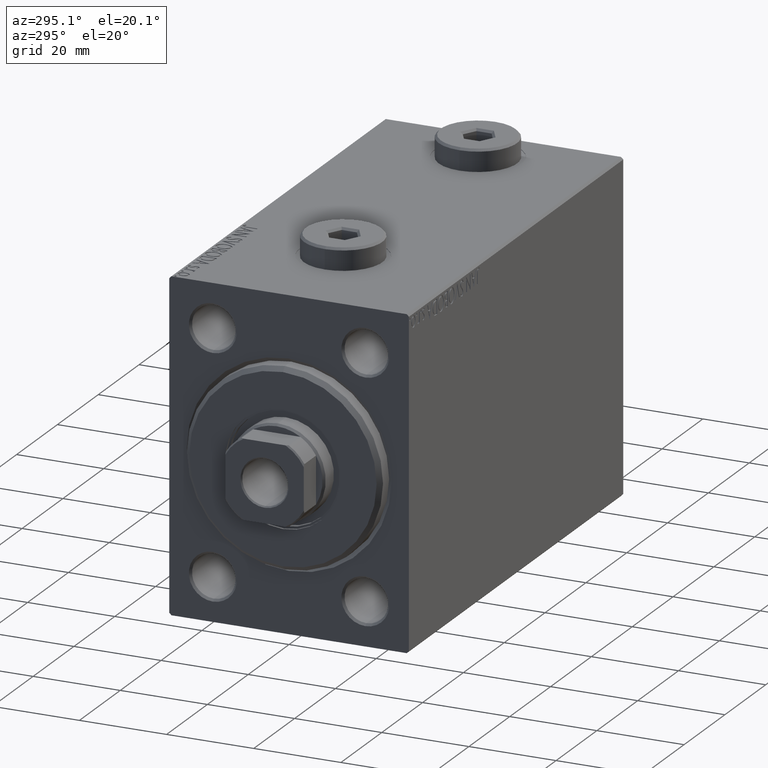
[diagram: clean part render]
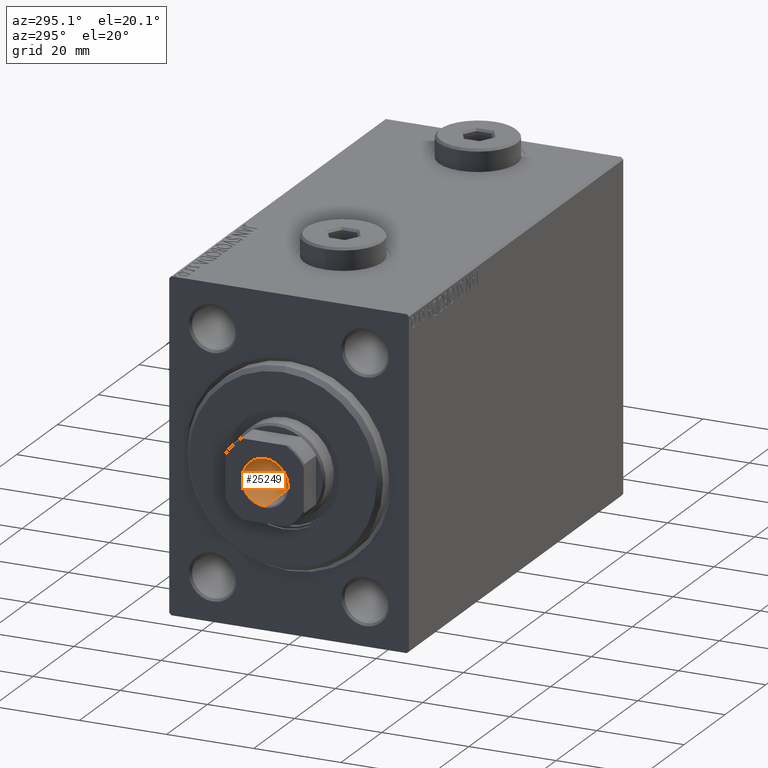
[diagram: same view with one face highlighted and labeled with its STEP entity id]
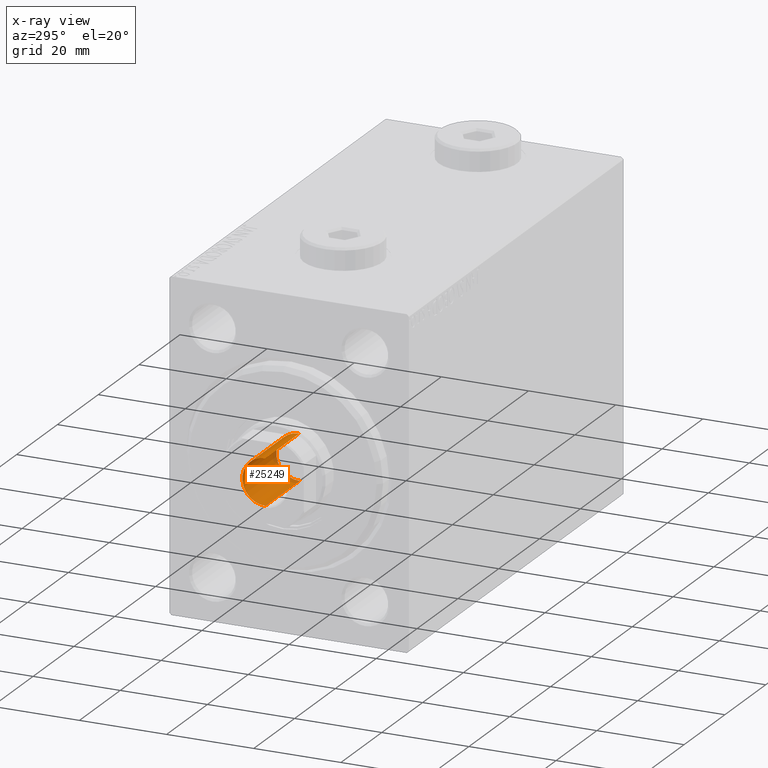
[diagram: x-ray of the same camera — body ghosted, the highlighted face saturated]
A machine part, auxiliary view. The second image highlights one B-rep face of the part: STEP entity #25249.
The next image is the same camera in x-ray: the body ghosted, the highlighted face saturated — about 5% of this face is hidden behind the body in this view.
In plain terms, the highlighted cylindrical surface (edge-blend (fillet) strip) has radius 5.25 mm, axis along (-1, 0, 0).
Its self-contained STEP definition (entity closure, byte-faithful):
#35 = VERTEX_POINT ( 'NONE', #2042 ) ;
#1273 = EDGE_CURVE ( 'NONE', #35, #22302, #22771, .T. ) ;
#2042 = CARTESIAN_POINT ( 'NONE',  ( -5.249999999999995559, 6.429395695523600208E-16, 90.00000000000001421 ) ) ;
#2944 = CARTESIAN_POINT ( 'NONE',  ( 0.000000000000000000, 0.000000000000000000, 90.00000000000001421 ) ) ;
#2962 = ORIENTED_EDGE ( 'NONE', *, *, #7004, .T. ) ;
#4566 = CARTESIAN_POINT ( 'NONE',  ( -5.249999999999996447, 6.429395695523600208E-16, 107.0000000000000142 ) ) ;
#6282 = DIRECTION ( 'NONE',  ( 1.000000000000000000, 0.000000000000000000, 0.000000000000000000 ) ) ;
#7004 = EDGE_CURVE ( 'NONE', #30103, #23620, #12509, .T. ) ;
#9403 = CIRCLE ( 'NONE', #19713, 5.249999999999996447 ) ;
#10134 = CIRCLE ( 'NONE', #13833, 5.249999999999995559 ) ;
#12509 = LINE ( 'NONE', #30475, #38241 ) ;
#13833 = AXIS2_PLACEMENT_3D ( 'NONE', #2944, #44654, #45343 ) ;
#16612 = AXIS2_PLACEMENT_3D ( 'NONE', #31860, #45230, #6282 ) ;
#16704 = ORIENTED_EDGE ( 'NONE', *, *, #1273, .F. ) ;
#17124 = DIRECTION ( 'NONE',  ( -0.000000000000000000, -0.000000000000000000, 1.000000000000000000 ) ) ;
#17818 = CYLINDRICAL_SURFACE ( 'NONE', #16612, 5.249999999999996447 ) ;
#17959 = CARTESIAN_POINT ( 'NONE',  ( 5.249999999999995559, 0.000000000000000000, 90.00000000000001421 ) ) ;
#18651 = DIRECTION ( 'NONE',  ( -0.000000000000000000, -0.000000000000000000, 1.000000000000000000 ) ) ;
#19713 = AXIS2_PLACEMENT_3D ( 'NONE', #32638, #28298, #36110 ) ;
#21045 = FACE_OUTER_BOUND ( 'NONE', #39187, .T. ) ;
#22302 = VERTEX_POINT ( 'NONE', #43628 ) ;
#22771 = LINE ( 'NONE', #4566, #38077 ) ;
#23620 = VERTEX_POINT ( 'NONE', #26009 ) ;
#25249 = ADVANCED_FACE ( 'NONE', ( #21045 ), #17818, .F. ) ;
#26009 = CARTESIAN_POINT ( 'NONE',  ( 5.249999999999996447, 0.000000000000000000, 106.6999999999999886 ) ) ;
#28298 = DIRECTION ( 'NONE',  ( 0.000000000000000000, 0.000000000000000000, 1.000000000000000000 ) ) ;
#30103 = VERTEX_POINT ( 'NONE', #17959 ) ;
#30475 = CARTESIAN_POINT ( 'NONE',  ( 5.249999999999996447, 0.000000000000000000, 107.0000000000000142 ) ) ;
#31725 = EDGE_CURVE ( 'NONE', #30103, #35, #10134, .T. ) ;
#31815 = EDGE_CURVE ( 'NONE', #23620, #22302, #9403, .T. ) ;
#31860 = CARTESIAN_POINT ( 'NONE',  ( 0.000000000000000000, 0.000000000000000000, 107.0000000000000142 ) ) ;
#32638 = CARTESIAN_POINT ( 'NONE',  ( 0.000000000000000000, 0.000000000000000000, 106.6999999999999886 ) ) ;
#34995 = ORIENTED_EDGE ( 'NONE', *, *, #31725, .F. ) ;
#36110 = DIRECTION ( 'NONE',  ( 1.000000000000000000, 0.000000000000000000, 0.000000000000000000 ) ) ;
#38077 = VECTOR ( 'NONE', #18651, 1000.000000000000000 ) ;
#38241 = VECTOR ( 'NONE', #17124, 1000.000000000000000 ) ;
#39187 = EDGE_LOOP ( 'NONE', ( #16704, #34995, #2962, #39818 ) ) ;
#39818 = ORIENTED_EDGE ( 'NONE', *, *, #31815, .T. ) ;
#43628 = CARTESIAN_POINT ( 'NONE',  ( -5.249999999999996447, 6.429395695523600208E-16, 106.6999999999999886 ) ) ;
#44654 = DIRECTION ( 'NONE',  ( -0.000000000000000000, -0.000000000000000000, 1.000000000000000000 ) ) ;
#45230 = DIRECTION ( 'NONE',  ( -0.000000000000000000, -0.000000000000000000, 1.000000000000000000 ) ) ;
#45343 = DIRECTION ( 'NONE',  ( 1.000000000000000000, 0.000000000000000000, 0.000000000000000000 ) ) ;